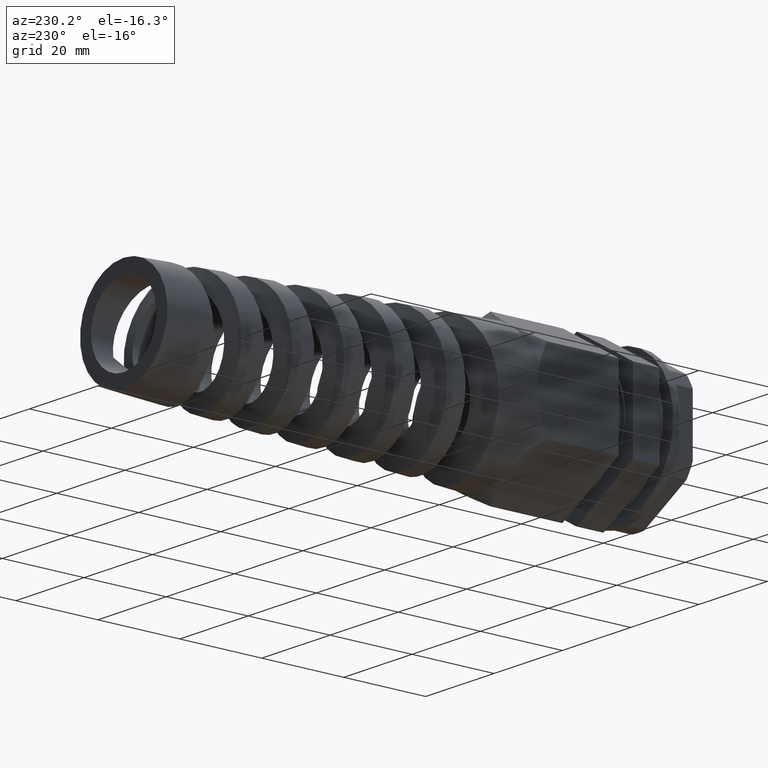
[diagram: clean part render]
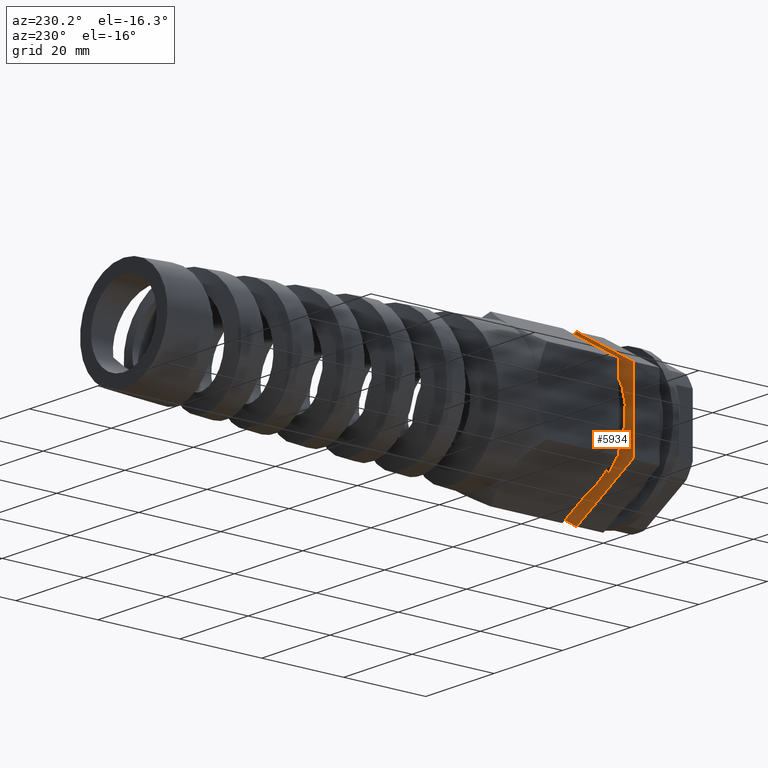
[diagram: same view with one face highlighted and labeled with its STEP entity id]
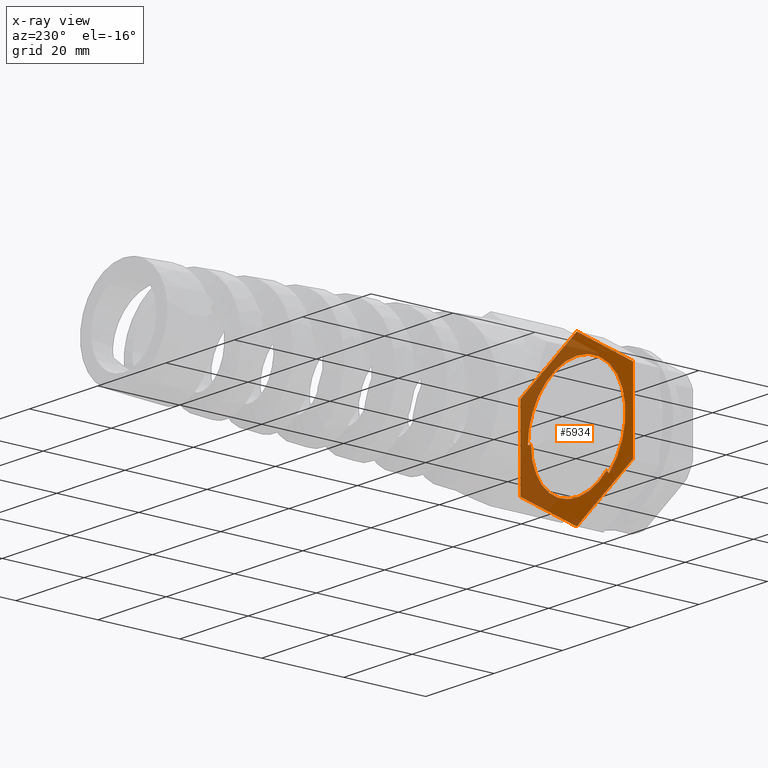
[diagram: x-ray of the same camera — body ghosted, the highlighted face saturated]
A machine part, auxiliary view. The second image highlights one B-rep face of the part: STEP entity #5934.
The next image is the same camera in x-ray: the body ghosted, the highlighted face saturated — about 45% of this face is hidden behind the body in this view.
In plain terms, the highlighted planar face has unit normal (0, 1, -0).
Its self-contained STEP definition (entity closure, byte-faithful):
#59 = ORIENTED_EDGE ( 'NONE', *, *, #11961, .T. ) ;
#307 = EDGE_CURVE ( 'NONE', #12671, #14699, #11125, .T. ) ;
#318 = AXIS2_PLACEMENT_3D ( 'NONE', #11349, #4496, #12456 ) ;
#382 = CARTESIAN_POINT ( 'NONE',  ( 16.40858443604035300, 6.500000000000000000, 9.579058242089047300 ) ) ;
#446 = VERTEX_POINT ( 'NONE', #7749 ) ;
#459 = VECTOR ( 'NONE', #13354, 1000.000000000000100 ) ;
#627 = CARTESIAN_POINT ( 'NONE',  ( -16.50000000000000000, 6.500000000000000000, 9.420721840708385000 ) ) ;
#693 = VECTOR ( 'NONE', #13986, 1000.000000000000000 ) ;
#842 = CARTESIAN_POINT ( 'NONE',  ( 12.64054675937067500, 6.499999999999999100, -4.402197148466089300 ) ) ;
#888 = CARTESIAN_POINT ( 'NONE',  ( 6.651044312051482200, 6.500000000000000000, -11.60273392465299100 ) ) ;
#938 = CARTESIAN_POINT ( 'NONE',  ( -5.897237335490445700, 6.500000000000002700, -12.00337583263092600 ) ) ;
#963 = DIRECTION ( 'NONE',  ( 0.0000000000000000000, 1.000000000000000000, -0.0000000000000000000 ) ) ;
#1058 = LINE ( 'NONE', #12879, #693 ) ;
#1082 = VERTEX_POINT ( 'NONE', #1850 ) ;
#1134 = CIRCLE ( 'NONE', #8117, 19.00000000000000000 ) ;
#1166 = AXIS2_PLACEMENT_3D ( 'NONE', #6810, #14632, #7975 ) ;
#1215 = CARTESIAN_POINT ( 'NONE',  ( -16.40858443604035300, 6.500000000000000000, 9.579058242089050900 ) ) ;
#1265 = ORIENTED_EDGE ( 'NONE', *, *, #8417, .T. ) ;
#1424 = ORIENTED_EDGE ( 'NONE', *, *, #5565, .F. ) ;
#1462 = EDGE_CURVE ( 'NONE', #6953, #12165, #2591, .T. ) ;
#1574 = ORIENTED_EDGE ( 'NONE', *, *, #1785, .T. ) ;
#1785 = EDGE_CURVE ( 'NONE', #446, #9774, #12312, .T. ) ;
#1817 = CARTESIAN_POINT ( 'NONE',  ( 0.0000000000000000000, 6.500000000000000000, 0.0000000000000000000 ) ) ;
#1850 = CARTESIAN_POINT ( 'NONE',  ( 1.751244922780715100E-015, 6.500000000000000000, 14.30000000000000100 ) ) ;
#2037 = B_SPLINE_CURVE_WITH_KNOTS ( 'NONE', 3,
 ( #4348, #11198, #6689, #14518, #7857, #842, #9034, #2049, #10143, #3199, #11251, #4385, #12354, #5537, #13461, #6731, #14568, #7907, #888, #9083, #2097, #10184, #3247, #11290, #4435, #12391, #5593, #13503, #6783, #14610, #7949, #938, #9129, #2153, #10227, #3295, #11341, #4482 ),
 .UNSPECIFIED., .F., .F.,
 ( 4, 2, 2, 2, 2, 2, 2, 2, 2, 2, 2, 2, 2, 2, 2, 2, 2, 2, 4 ),
 ( 0.0000000000000000000, 0.001925591943802478800, 0.003851183887604957600, 0.005776775831407436400, 0.007702367775209915300, 0.009627959719012393200, 0.01059075569091362900, 0.01155355166281486400, 0.01347914360661733000, 0.01444193957851856200, 0.01540473555041979200, 0.01925591943802472700, 0.02310710332562966200, 0.02406989929753090100, 0.02503269526943213300, 0.02695828721323460100, 0.02792108318513583700, 0.02888387915703707200, 0.03080947110083954300 ),
 .UNSPECIFIED. ) ;
#2041 = CARTESIAN_POINT ( 'NONE',  ( 14.30000000000000100, 6.500000000000000900, -5.345238257899726200E-014 ) ) ;
#2049 = CARTESIAN_POINT ( 'NONE',  ( 11.87886111281805100, 6.500000000000000000, -6.169464911158398100 ) ) ;
#2097 = CARTESIAN_POINT ( 'NONE',  ( 5.798577128791448500, 6.499999999999999100, -12.05137277336340600 ) ) ;
#2153 = CARTESIAN_POINT ( 'NONE',  ( -6.742067247810966000, 6.500000000000002700, -11.55008508332901900 ) ) ;
#2414 = VERTEX_POINT ( 'NONE', #4521 ) ;
#2422 = CARTESIAN_POINT ( 'NONE',  ( 0.0000000000000000000, 6.500000000000000000, 0.0000000000000000000 ) ) ;
#2591 = B_SPLINE_CURVE_WITH_KNOTS ( 'NONE', 1,
 ( #8135, #8185 ),
 .UNSPECIFIED., .F., .F.,
 ( 2, 2 ),
 ( 0.0000000000000000000, 0.0009300000000000002700 ),
 .UNSPECIFIED. ) ;
#2686 = CARTESIAN_POINT ( 'NONE',  ( 0.0000000000000000000, 6.500000000000000000, 0.0000000000000000000 ) ) ;
#2845 = VERTEX_POINT ( 'NONE', #2976 ) ;
#2971 = DIRECTION ( 'NONE',  ( 0.0000000000000000000, 0.0000000000000000000, 1.000000000000000000 ) ) ;
#2976 = CARTESIAN_POINT ( 'NONE',  ( 16.50000000000000700, 6.500000000000000000, 9.420721840708372600 ) ) ;
#3138 = EDGE_CURVE ( 'NONE', #14233, #2414, #7447, .T. ) ;
#3199 = CARTESIAN_POINT ( 'NONE',  ( 10.88277577542518600, 6.499999999999998200, -7.792597888100216300 ) ) ;
#3225 =( BOUNDED_CURVE ( )  B_SPLINE_CURVE ( 1, ( #7050, #13750 ),
 .UNSPECIFIED., .F., .T. ) 
 B_SPLINE_CURVE_WITH_KNOTS ( ( 2, 2 ),
 ( 0.0000000000000000000, 0.0009299756612027362100 ),
 .UNSPECIFIED. ) 
 CURVE ( )  GEOMETRIC_REPRESENTATION_ITEM ( )  RATIONAL_B_SPLINE_CURVE ( ( 0.9775108650333608200, 0.9775108650333608200 ) ) 
 REPRESENTATION_ITEM ( '' )  );
#3247 = CARTESIAN_POINT ( 'NONE',  ( 3.124819595041565800, 6.499999999999999100, -13.06321854960251900 ) ) ;
#3267 = EDGE_CURVE ( 'NONE', #9774, #12671, #3591, .T. ) ;
#3295 = CARTESIAN_POINT ( 'NONE',  ( -7.825513475014050300, 6.500000000000001800, -10.85958401017689200 ) ) ;
#3582 = DIRECTION ( 'NONE',  ( 0.0000000000000000000, 0.0000000000000000000, 1.000000000000000000 ) ) ;
#3591 = LINE ( 'NONE', #12242, #459 ) ;
#3706 = CIRCLE ( 'NONE', #4453, 19.00000000000000000 ) ;
#3800 = CARTESIAN_POINT ( 'NONE',  ( -16.40858443604036100, 6.500000000000000000, -9.579058242089043800 ) ) ;
#3870 = DIRECTION ( 'NONE',  ( 0.0000000000000000000, 0.0000000000000000000, 1.000000000000000000 ) ) ;
#3912 = DIRECTION ( 'NONE',  ( 0.0000000000000000000, 0.0000000000000000000, 1.000000000000000000 ) ) ;
#4116 = AXIS2_PLACEMENT_3D ( 'NONE', #4990, #12925, #6172 ) ;
#4119 = DIRECTION ( 'NONE',  ( 0.0000000000000000000, 1.000000000000000000, -0.0000000000000000000 ) ) ;
#4150 = DIRECTION ( 'NONE',  ( 0.0000000000000000000, 1.000000000000000000, -0.0000000000000000000 ) ) ;
#4322 = CARTESIAN_POINT ( 'NONE',  ( 0.0000000000000000000, 6.500000000000000000, 0.0000000000000000000 ) ) ;
#4348 = CARTESIAN_POINT ( 'NONE',  ( 13.36999999999999900, 6.500000000000000900, -4.962773654646435500E-014 ) ) ;
#4385 = CARTESIAN_POINT ( 'NONE',  ( 9.870975460966212400, 6.499999999999994700, -9.023470743340496400 ) ) ;
#4435 = CARTESIAN_POINT ( 'NONE',  ( -0.6931423646455009400, 6.500000000000000900, -13.41296868143685500 ) ) ;
#4453 = AXIS2_PLACEMENT_3D ( 'NONE', #1817, #9923, #2971 ) ;
#4482 = CARTESIAN_POINT ( 'NONE',  ( -8.819948510621820500, 6.499999999999613600, -10.04818910844083900 ) ) ;
#4487 = VERTEX_POINT ( 'NONE', #10476 ) ;
#4488 = AXIS2_PLACEMENT_3D ( 'NONE', #8398, #8381, #8366 ) ;
#4496 = DIRECTION ( 'NONE',  ( 0.0000000000000000000, 1.000000000000000000, 0.0000000000000000000 ) ) ;
#4521 = CARTESIAN_POINT ( 'NONE',  ( -0.09141556395963340600, 6.500000000000000000, 18.99978008279743200 ) ) ;
#4607 = LINE ( 'NONE', #12517, #10352 ) ;
#4647 = VECTOR ( 'NONE', #12676, 1000.000000000000000 ) ;
#4766 = ORIENTED_EDGE ( 'NONE', *, *, #9201, .T. ) ;
#4887 = CARTESIAN_POINT ( 'NONE',  ( 16.40858443604036100, 6.500000000000000000, -9.579058242089047300 ) ) ;
#4892 = AXIS2_PLACEMENT_3D ( 'NONE', #4322, #4119, #3912 ) ;
#4921 = EDGE_LOOP ( 'NONE', ( #12550, #4766, #8947, #12595, #6454, #12830, #6213, #59, #1265, #5573, #1574, #7892, #9969 ) ) ;
#4990 = CARTESIAN_POINT ( 'NONE',  ( 0.0000000000000000000, 6.500000000000000000, 0.0000000000000000000 ) ) ;
#5176 = EDGE_CURVE ( 'NONE', #12165, #4487, #2037, .T. ) ;
#5205 = CIRCLE ( 'NONE', #8000, 19.00000000000000000 ) ;
#5396 = ORIENTED_EDGE ( 'NONE', *, *, #5176, .F. ) ;
#5504 = ORIENTED_EDGE ( 'NONE', *, *, #1462, .F. ) ;
#5537 = CARTESIAN_POINT ( 'NONE',  ( 9.196115736267303800, 6.499999999999999100, -9.710354942509580300 ) ) ;
#5565 = EDGE_CURVE ( 'NONE', #1082, #6953, #11283, .T. ) ;
#5573 = ORIENTED_EDGE ( 'NONE', *, *, #6271, .T. ) ;
#5591 = EDGE_CURVE ( 'NONE', #14572, #2845, #5205, .T. ) ;
#5593 = CARTESIAN_POINT ( 'NONE',  ( -2.588993350163185000, 6.500000000000000900, -13.12087311933027500 ) ) ;
#5722 = DIRECTION ( 'NONE',  ( 0.8660254037844384900, 0.0000000000000000000, -0.5000000000000001100 ) ) ;
#5745 = CARTESIAN_POINT ( 'NONE',  ( 0.0000000000000000000, 6.500000000000000000, 19.00000000000000000 ) ) ;
#5934 = ADVANCED_FACE ( 'NONE', ( #6124, #14724 ), #11000, .T. ) ;
#5947 = VERTEX_POINT ( 'NONE', #8830 ) ;
#6124 = FACE_BOUND ( 'NONE', #10660, .T. ) ;
#6172 = DIRECTION ( 'NONE',  ( 0.0000000000000000000, 0.0000000000000000000, 1.000000000000000000 ) ) ;
#6213 = ORIENTED_EDGE ( 'NONE', *, *, #5591, .T. ) ;
#6271 = EDGE_CURVE ( 'NONE', #6331, #446, #10756, .T. ) ;
#6331 = VERTEX_POINT ( 'NONE', #4887 ) ;
#6454 = ORIENTED_EDGE ( 'NONE', *, *, #12802, .T. ) ;
#6689 = CARTESIAN_POINT ( 'NONE',  ( 13.32370673318171800, 6.500000000000003600, -1.284217380965358800 ) ) ;
#6731 = CARTESIAN_POINT ( 'NONE',  ( 8.239170837838896600, 6.500000000000005300, -10.54880273570942100 ) ) ;
#6783 = CARTESIAN_POINT ( 'NONE',  ( -3.524114694609477500, 6.499999999999994700, -12.90113051261368300 ) ) ;
#6810 = CARTESIAN_POINT ( 'NONE',  ( 0.0000000000000000000, 6.500000000000000000, 0.0000000000000000000 ) ) ;
#6869 = VERTEX_POINT ( 'NONE', #13362 ) ;
#6933 = VECTOR ( 'NONE', #8416, 1000.000000000000000 ) ;
#6953 = VERTEX_POINT ( 'NONE', #2041 ) ;
#7050 = CARTESIAN_POINT ( 'NONE',  ( -8.819948510621820500, 6.499999999999613600, -10.04818910844083900 ) ) ;
#7081 = CARTESIAN_POINT ( 'NONE',  ( 16.50000000000000000, 6.500000000000000000, -9.526279441628823000 ) ) ;
#7253 = CARTESIAN_POINT ( 'NONE',  ( 16.50000000000000700, 6.500000000000000000, 9.526279441628819500 ) ) ;
#7368 = EDGE_CURVE ( 'NONE', #2414, #11234, #1134, .T. ) ;
#7447 = LINE ( 'NONE', #13255, #13393 ) ;
#7749 = CARTESIAN_POINT ( 'NONE',  ( 0.09141556395964034500, 6.500000000000000000, -18.99978008279742500 ) ) ;
#7857 = CARTESIAN_POINT ( 'NONE',  ( 13.00184526268153800, 6.500000000000000000, -3.180373328871613800 ) ) ;
#7892 = ORIENTED_EDGE ( 'NONE', *, *, #3267, .T. ) ;
#7907 = CARTESIAN_POINT ( 'NONE',  ( 6.925939527837726900, 6.500000000000001800, -11.44069724858694800 ) ) ;
#7949 = CARTESIAN_POINT ( 'NONE',  ( -5.031785953260915700, 6.500000000000000000, -12.40332701381170600 ) ) ;
#7975 = DIRECTION ( 'NONE',  ( 0.0000000000000000000, 0.0000000000000000000, 1.000000000000000000 ) ) ;
#7976 = CARTESIAN_POINT ( 'NONE',  ( 0.0000000000000000000, 6.500000000000000000, 0.0000000000000000000 ) ) ;
#8000 = AXIS2_PLACEMENT_3D ( 'NONE', #2686, #10755, #3870 ) ;
#8058 = CARTESIAN_POINT ( 'NONE',  ( -16.50000000000000000, 6.500000000000000000, -9.420721840708383300 ) ) ;
#8090 = VERTEX_POINT ( 'NONE', #13979 ) ;
#8117 = AXIS2_PLACEMENT_3D ( 'NONE', #7976, #963, #9151 ) ;
#8135 = CARTESIAN_POINT ( 'NONE',  ( 14.30000000000000100, 6.500000000000000900, -5.345238257899726200E-014 ) ) ;
#8185 = CARTESIAN_POINT ( 'NONE',  ( 13.36999999999999900, 6.500000000000000900, -4.962773654646435500E-014 ) ) ;
#8366 = DIRECTION ( 'NONE',  ( 0.0000000000000000000, 0.0000000000000000000, 1.000000000000000000 ) ) ;
#8381 = DIRECTION ( 'NONE',  ( 0.0000000000000000000, 1.000000000000000000, -0.0000000000000000000 ) ) ;
#8398 = CARTESIAN_POINT ( 'NONE',  ( 0.0000000000000000000, 6.500000000000000000, 0.0000000000000000000 ) ) ;
#8416 = DIRECTION ( 'NONE',  ( -3.641974784817357100E-016, 0.0000000000000000000, -1.000000000000000000 ) ) ;
#8417 = EDGE_CURVE ( 'NONE', #5947, #6331, #12612, .T. ) ;
#8807 = DIRECTION ( 'NONE',  ( 0.8660254037844387100, 0.0000000000000000000, 0.4999999999999997800 ) ) ;
#8830 = CARTESIAN_POINT ( 'NONE',  ( 16.50000000000000000, 6.500000000000000000, -9.420721840708385000 ) ) ;
#8947 = ORIENTED_EDGE ( 'NONE', *, *, #3138, .T. ) ;
#9034 = CARTESIAN_POINT ( 'NONE',  ( 12.41565148463002700, 6.500000000000000900, -5.002122121536631400 ) ) ;
#9064 = ORIENTED_EDGE ( 'NONE', *, *, #9655, .F. ) ;
#9083 = CARTESIAN_POINT ( 'NONE',  ( 6.087291337028400300, 6.500000000000000000, -11.90817882477963100 ) ) ;
#9129 = CARTESIAN_POINT ( 'NONE',  ( -6.181632360554586600, 6.500000000000003600, -11.85948274762661600 ) ) ;
#9151 = DIRECTION ( 'NONE',  ( 0.0000000000000000000, 0.0000000000000000000, 1.000000000000000000 ) ) ;
#9201 = EDGE_CURVE ( 'NONE', #9891, #14233, #11059, .T. ) ;
#9310 = EDGE_CURVE ( 'NONE', #8090, #14572, #4607, .T. ) ;
#9655 = EDGE_CURVE ( 'NONE', #4487, #6869, #3225, .T. ) ;
#9774 = VERTEX_POINT ( 'NONE', #10717 ) ;
#9809 = CARTESIAN_POINT ( 'NONE',  ( 13.36999999999999900, 6.500000000000000900, -4.962773654646435500E-014 ) ) ;
#9891 = VERTEX_POINT ( 'NONE', #627 ) ;
#9923 = DIRECTION ( 'NONE',  ( 0.0000000000000000000, 1.000000000000000000, -0.0000000000000000000 ) ) ;
#9969 = ORIENTED_EDGE ( 'NONE', *, *, #307, .T. ) ;
#10021 = AXIS2_PLACEMENT_3D ( 'NONE', #10622, #4150, #12123 ) ;
#10143 = CARTESIAN_POINT ( 'NONE',  ( 11.57171095712238800, 6.499999999999999100, -6.727174870385578500 ) ) ;
#10184 = CARTESIAN_POINT ( 'NONE',  ( 4.343377347342287600, 6.499999999999998200, -12.70922570275641800 ) ) ;
#10227 = CARTESIAN_POINT ( 'NONE',  ( -7.018607687651918800, 6.499999999999998200, -11.38418044820564400 ) ) ;
#10289 = AXIS2_PLACEMENT_3D ( 'NONE', #2422, #10485, #3582 ) ;
#10314 = LINE ( 'NONE', #7253, #6933 ) ;
#10352 = VECTOR ( 'NONE', #5722, 1000.000000000000200 ) ;
#10476 = CARTESIAN_POINT ( 'NONE',  ( -8.819948510621820500, 6.499999999999613600, -10.04818910844083900 ) ) ;
#10485 = DIRECTION ( 'NONE',  ( 0.0000000000000000000, 1.000000000000000000, -0.0000000000000000000 ) ) ;
#10622 = CARTESIAN_POINT ( 'NONE',  ( 0.0000000000000000000, 6.500000000000000000, 0.0000000000000000000 ) ) ;
#10660 = EDGE_LOOP ( 'NONE', ( #14140, #9064, #5396, #5504, #1424 ) ) ;
#10717 = CARTESIAN_POINT ( 'NONE',  ( -0.09141556395964728400, 6.500000000000000000, -18.99978008279742900 ) ) ;
#10755 = DIRECTION ( 'NONE',  ( 0.0000000000000000000, 1.000000000000000000, -0.0000000000000000000 ) ) ;
#10756 = LINE ( 'NONE', #7081, #4647 ) ;
#11000 = PLANE ( 'NONE',  #10021 ) ;
#11059 = CIRCLE ( 'NONE', #1166, 19.00000000000000000 ) ;
#11125 = CIRCLE ( 'NONE', #4488, 19.00000000000000000 ) ;
#11198 = CARTESIAN_POINT ( 'NONE',  ( 13.36999999999999700, 6.500000000000003600, -0.6434302151070330200 ) ) ;
#11234 = VERTEX_POINT ( 'NONE', #5745 ) ;
#11251 = CARTESIAN_POINT ( 'NONE',  ( 10.50098529352006700, 6.499999999999995600, -8.300307291750876000 ) ) ;
#11283 = CIRCLE ( 'NONE', #4116, 14.30000000000000100 ) ;
#11290 = CARTESIAN_POINT ( 'NONE',  ( 0.5766206388817078900, 6.499999999999998200, -13.41937995580985200 ) ) ;
#11341 = CARTESIAN_POINT ( 'NONE',  ( -8.336380410808249800, 6.499999999999997300, -10.47264677945922500 ) ) ;
#11349 = CARTESIAN_POINT ( 'NONE',  ( 0.0000000000000000000, 6.500000000000000000, 0.0000000000000000000 ) ) ;
#11566 = CIRCLE ( 'NONE', #318, 14.30000000000000100 ) ;
#11961 = EDGE_CURVE ( 'NONE', #2845, #5947, #10314, .T. ) ;
#11977 = EDGE_CURVE ( 'NONE', #14699, #9891, #1058, .T. ) ;
#12123 = DIRECTION ( 'NONE',  ( 0.0000000000000000000, 0.0000000000000000000, 1.000000000000000000 ) ) ;
#12165 = VERTEX_POINT ( 'NONE', #9809 ) ;
#12242 = CARTESIAN_POINT ( 'NONE',  ( -5.014007034508898700E-015, 6.500000000000000000, -19.05255888325765000 ) ) ;
#12312 = CIRCLE ( 'NONE', #4892, 19.00000000000000000 ) ;
#12354 = CARTESIAN_POINT ( 'NONE',  ( 9.650464137051532300, 6.499999999999999100, -9.258945385758067900 ) ) ;
#12391 = CARTESIAN_POINT ( 'NONE',  ( -2.272305701164865500, 6.500000000000000900, -13.17937260684538500 ) ) ;
#12456 = DIRECTION ( 'NONE',  ( 0.0000000000000000000, 0.0000000000000000000, 1.000000000000000000 ) ) ;
#12517 = CARTESIAN_POINT ( 'NONE',  ( 4.923811255019721900E-015, 6.500000000000000000, 19.05255888325765300 ) ) ;
#12550 = ORIENTED_EDGE ( 'NONE', *, *, #11977, .T. ) ;
#12595 = ORIENTED_EDGE ( 'NONE', *, *, #7368, .T. ) ;
#12612 = CIRCLE ( 'NONE', #10289, 19.00000000000000000 ) ;
#12671 = VERTEX_POINT ( 'NONE', #3800 ) ;
#12676 = DIRECTION ( 'NONE',  ( -0.8660254037844387100, 0.0000000000000000000, -0.4999999999999999400 ) ) ;
#12802 = EDGE_CURVE ( 'NONE', #11234, #8090, #3706, .T. ) ;
#12830 = ORIENTED_EDGE ( 'NONE', *, *, #9310, .T. ) ;
#12879 = CARTESIAN_POINT ( 'NONE',  ( -16.50000000000000000, 6.500000000000000000, -9.526279441628819500 ) ) ;
#12925 = DIRECTION ( 'NONE',  ( 0.0000000000000000000, 1.000000000000000000, 0.0000000000000000000 ) ) ;
#13255 = CARTESIAN_POINT ( 'NONE',  ( -16.50000000000000000, 6.500000000000000000, 9.526279441628830100 ) ) ;
#13354 = DIRECTION ( 'NONE',  ( -0.8660254037844384900, 0.0000000000000000000, 0.5000000000000002200 ) ) ;
#13362 = CARTESIAN_POINT ( 'NONE',  ( -9.432063147487742300, 6.499999999999999100, -10.74832697800732700 ) ) ;
#13393 = VECTOR ( 'NONE', #8807, 1000.000000000000100 ) ;
#13461 = CARTESIAN_POINT ( 'NONE',  ( 8.961983365494480900, 6.500000000000002700, -9.926776316078720800 ) ) ;
#13503 = CARTESIAN_POINT ( 'NONE',  ( -3.215210148237155300, 6.500000000000003600, -12.98162718178517300 ) ) ;
#13750 = CARTESIAN_POINT ( 'NONE',  ( -9.432063147487742300, 6.499999999999999100, -10.74832697800732700 ) ) ;
#13979 = CARTESIAN_POINT ( 'NONE',  ( 0.09141556395965075300, 6.500000000000000000, 18.99978008279742900 ) ) ;
#13986 = DIRECTION ( 'NONE',  ( 0.0000000000000000000, 0.0000000000000000000, 1.000000000000000000 ) ) ;
#14140 = ORIENTED_EDGE ( 'NONE', *, *, #14613, .F. ) ;
#14233 = VERTEX_POINT ( 'NONE', #1215 ) ;
#14518 = CARTESIAN_POINT ( 'NONE',  ( 13.13897035043900800, 6.500000000000004400, -2.556919465395762500 ) ) ;
#14568 = CARTESIAN_POINT ( 'NONE',  ( 7.730176552993369500, 6.500000000000000000, -10.92730521559991900 ) ) ;
#14572 = VERTEX_POINT ( 'NONE', #382 ) ;
#14610 = CARTESIAN_POINT ( 'NONE',  ( -4.438524257810170700, 6.499999999999994700, -12.62781473814834000 ) ) ;
#14613 = EDGE_CURVE ( 'NONE', #6869, #1082, #11566, .T. ) ;
#14632 = DIRECTION ( 'NONE',  ( 0.0000000000000000000, 1.000000000000000000, -0.0000000000000000000 ) ) ;
#14699 = VERTEX_POINT ( 'NONE', #8058 ) ;
#14724 = FACE_OUTER_BOUND ( 'NONE', #4921, .T. ) ;